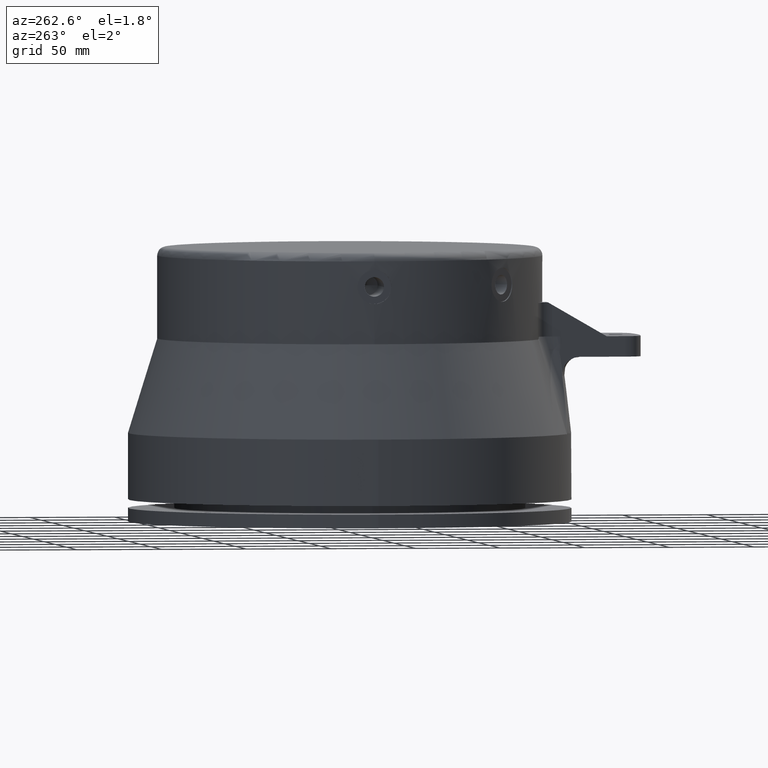
[diagram: clean part render]
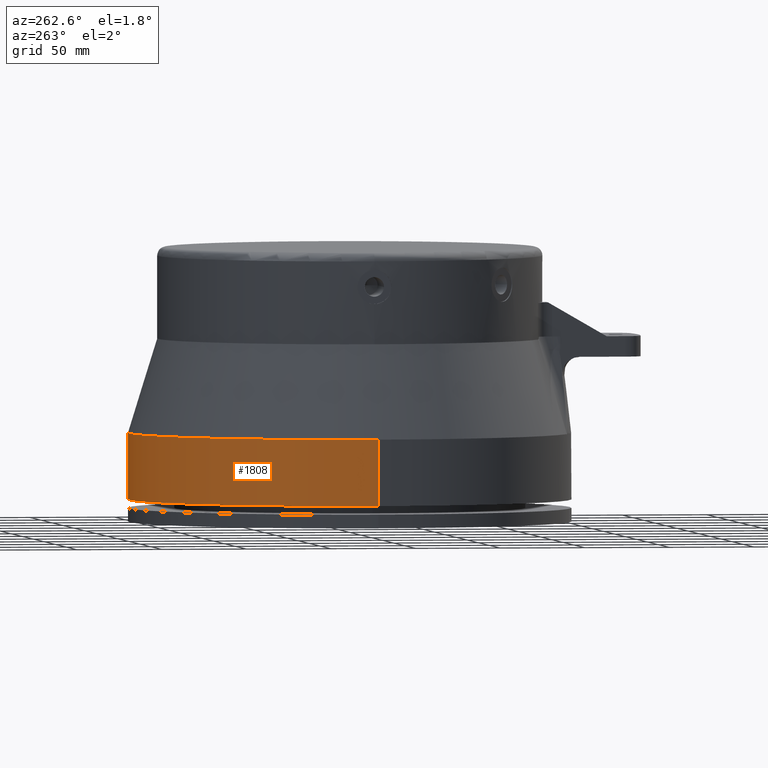
[diagram: same view with one face highlighted and labeled with its STEP entity id]
A machine part, auxiliary view. The second image highlights one B-rep face of the part: STEP entity #1808.
In plain terms, the highlighted cylindrical surface (partial cylindrical patch) has radius 130 mm, axis along (0, 0, 1).
Its self-contained STEP definition (entity closure, byte-faithful):
#370=CARTESIAN_POINT('',(2.718715894107E-14,0.E0,-1.48E2));
#371=DIRECTION('',(0.E0,0.E0,1.E0));
#372=DIRECTION('',(1.E0,0.E0,0.E0));
#373=AXIS2_PLACEMENT_3D('',#370,#371,#372);
#375=DIRECTION('',(0.E0,0.E0,1.E0));
#376=VECTOR('',#375,3.9E1);
#377=CARTESIAN_POINT('',(1.3E2,0.E0,-1.48E2));
#378=LINE('',#377,#376);
#379=DIRECTION('',(0.E0,0.E0,1.E0));
#380=VECTOR('',#379,3.9E1);
#381=CARTESIAN_POINT('',(-1.3E2,0.E0,-1.48E2));
#382=LINE('',#381,#380);
#383=CARTESIAN_POINT('',(1.298112031889E2,7.003679508836E0,-1.22E2));
#384=CARTESIAN_POINT('',(1.298112031889E2,7.003679508836E0,-1.224204795832E2));
#385=CARTESIAN_POINT('',(1.298083788692E2,7.056325144006E0,-1.232540116315E2));
#386=CARTESIAN_POINT('',(1.297954440103E2,7.292063664369E0,-1.244909640563E2));
#387=CARTESIAN_POINT('',(1.297731587913E2,7.681014741076E0,-1.256877653222E2));
#388=CARTESIAN_POINT('',(1.297405111336E2,8.217180880025E0,-1.268275960629E2));
#389=CARTESIAN_POINT('',(1.296962347131E2,8.892109125148E0,-1.278917402317E2));
#390=CARTESIAN_POINT('',(1.296389481546E2,9.694934846737E0,-1.288632003519E2));
#391=CARTESIAN_POINT('',(1.295673175090E2,1.061251295621E1,-1.297262091482E2));
#392=CARTESIAN_POINT('',(1.294802219807E2,1.162971903419E1,-1.304668858103E2));
#393=CARTESIAN_POINT('',(1.293769124866E2,1.272982018503E1,-1.310734724753E2));
#394=CARTESIAN_POINT('',(1.292571445178E2,1.389493029358E1,-1.315365583349E2));
#395=CARTESIAN_POINT('',(1.291212870763E2,1.510638740907E1,-1.318491269103E2));
#396=CARTESIAN_POINT('',(1.289703971799E2,1.634510311370E1,-1.320065536821E2));
#397=CARTESIAN_POINT('',(1.288062611644E2,1.759183979132E1,-1.320065534536E2));
#398=CARTESIAN_POINT('',(1.286314073509E2,1.882739357549E1,-1.318491272796E2));
#399=CARTESIAN_POINT('',(1.284490898931E2,2.003271803157E1,-1.315365644631E2));
#400=CARTESIAN_POINT('',(1.282632254830E2,2.118911972103E1,-1.310734852614E2));
#401=CARTESIAN_POINT('',(1.280782875173E2,2.227847657922E1,-1.304669019418E2));
#402=CARTESIAN_POINT('',(1.278991424331E2,2.328356856378E1,-1.297262264549E2));
#403=CARTESIAN_POINT('',(1.277308451456E2,2.418842369940E1,-1.288632190432E2));
#404=CARTESIAN_POINT('',(1.275783923008E2,2.497872542015E1,-1.278917577865E2));
#405=CARTESIAN_POINT('',(1.274464751027E2,2.564211918029E1,-1.268276125942E2));
#406=CARTESIAN_POINT('',(1.273392396536E2,2.616846911067E1,-1.256877796896E2));
#407=CARTESIAN_POINT('',(1.272600969988E2,2.654993767777E1,-1.244909751038E2));
#408=CARTESIAN_POINT('',(1.272115770591E2,2.678099347458E1,-1.232540175354E2));
#409=CARTESIAN_POINT('',(1.272006793445E2,2.683257673631E1,-1.224204816626E2));
#410=CARTESIAN_POINT('',(1.272006793445E2,2.683257673631E1,-1.22E2));
#412=CARTESIAN_POINT('',(1.272006793445E2,2.683257673631E1,-1.22E2));
#413=CARTESIAN_POINT('',(1.272006793445E2,2.683257673631E1,-1.215795204168E2));
#414=CARTESIAN_POINT('',(1.272115769542E2,2.678099396995E1,-1.207459883685E2));
#415=CARTESIAN_POINT('',(1.272600964587E2,2.654994025705E1,-1.195090359437E2));
#416=CARTESIAN_POINT('',(1.273392385363E2,2.616847452779E1,-1.183122346778E2));
#417=CARTESIAN_POINT('',(1.274464733287E2,2.564212797140E1,-1.171724039371E2));
#418=CARTESIAN_POINT('',(1.275783898745E2,2.497873776767E1,-1.161082597683E2));
#419=CARTESIAN_POINT('',(1.277308418949E2,2.418844081682E1,-1.151367996481E2));
#420=CARTESIAN_POINT('',(1.278991386944E2,2.328358904795E1,-1.142737908518E2));
#421=CARTESIAN_POINT('',(1.280782831800E2,2.227850144508E1,-1.135331141897E2));
#422=CARTESIAN_POINT('',(1.282632210010E2,2.118914686737E1,-1.129265275247E2));
#423=CARTESIAN_POINT('',(1.284490867125E2,2.003273869173E1,-1.124634416651E2));
#424=CARTESIAN_POINT('',(1.286314066748E2,1.882739848314E1,-1.121508730897E2));
#425=CARTESIAN_POINT('',(1.288062614429E2,1.759183781372E1,-1.119934463179E2));
#426=CARTESIAN_POINT('',(1.289703974228E2,1.634510113141E1,-1.119934465464E2));
#427=CARTESIAN_POINT('',(1.291212864591E2,1.510639232447E1,-1.121508727204E2));
#428=CARTESIAN_POINT('',(1.292571422428E2,1.389495107296E1,-1.124634355369E2));
#429=CARTESIAN_POINT('',(1.293769097899E2,1.272984756640E1,-1.129265147386E2));
#430=CARTESIAN_POINT('',(1.294802197344E2,1.162974417535E1,-1.135330980582E2));
#431=CARTESIAN_POINT('',(1.295673158186E2,1.061253371003E1,-1.142737735451E2));
#432=CARTESIAN_POINT('',(1.296389468643E2,9.694952222251E0,-1.151367809568E2));
#433=CARTESIAN_POINT('',(1.296962338609E2,8.892121679913E0,-1.161082422135E2));
#434=CARTESIAN_POINT('',(1.297405105718E2,8.217189830726E0,-1.171723874058E2));
#435=CARTESIAN_POINT('',(1.297731584684E2,7.681020262768E0,-1.183122203104E2));
#436=CARTESIAN_POINT('',(1.297954438645E2,7.292066295556E0,-1.195090248962E2));
#437=CARTESIAN_POINT('',(1.298083788423E2,7.056325649641E0,-1.207459824646E2));
#438=CARTESIAN_POINT('',(1.298112031889E2,7.003679508836E0,-1.215795183374E2));
#439=CARTESIAN_POINT('',(1.298112031889E2,7.003679508836E0,-1.22E2));
#1222=CARTESIAN_POINT('',(2.002297516606E-14,0.E0,-1.09E2));
#1223=DIRECTION('',(0.E0,0.E0,-1.E0));
#1224=DIRECTION('',(-1.E0,0.E0,0.E0));
#1225=AXIS2_PLACEMENT_3D('',#1222,#1223,#1224);
#1520=CARTESIAN_POINT('',(-1.3E2,0.E0,-1.09E2));
#1521=CARTESIAN_POINT('',(1.3E2,1.592040838892E-14,-1.09E2));
#1522=VERTEX_POINT('',#1520);
#1523=VERTEX_POINT('',#1521);
#1712=CARTESIAN_POINT('',(-1.3E2,0.E0,-1.48E2));
#1713=CARTESIAN_POINT('',(1.3E2,-1.592040838892E-14,-1.48E2));
#1714=VERTEX_POINT('',#1712);
#1715=VERTEX_POINT('',#1713);
#1730=VERTEX_POINT('',#383);
#1731=VERTEX_POINT('',#410);
#1787=CARTESIAN_POINT('',(3.105398120938E-14,0.E0,-1.6905E2));
#1788=DIRECTION('',(0.E0,0.E0,1.E0));
#1789=DIRECTION('',(-1.E0,0.E0,0.E0));
#1790=AXIS2_PLACEMENT_3D('',#1787,#1788,#1789);
#1791=CYLINDRICAL_SURFACE('',#1790,1.3E2);
#1793=ORIENTED_EDGE('',*,*,#1792,.F.);
#1795=ORIENTED_EDGE('',*,*,#1794,.T.);
#1797=ORIENTED_EDGE('',*,*,#1796,.F.);
#1799=ORIENTED_EDGE('',*,*,#1798,.F.);
#1800=EDGE_LOOP('',(#1793,#1795,#1797,#1799));
#1801=FACE_OUTER_BOUND('',#1800,.F.);
#1803=ORIENTED_EDGE('',*,*,#1802,.T.);
#1805=ORIENTED_EDGE('',*,*,#1804,.T.);
#1806=EDGE_LOOP('',(#1803,#1805));
#1807=FACE_BOUND('',#1806,.F.);
#374=CIRCLE('',#373,1.3E2);
#411=B_SPLINE_CURVE_WITH_KNOTS('',3,(#383,#384,#385,#386,#387,#388,#389,#390,
#391,#392,#393,#394,#395,#396,#397,#398,#399,#400,#401,#402,#403,#404,#405,#406,
#407,#408,#409,#410),.UNSPECIFIED.,.F.,.F.,(4,1,1,1,1,1,1,1,1,1,1,1,1,1,1,1,1,1,
1,1,1,1,1,1,1,4),(0.E0,4.E-2,8.E-2,1.2E-1,1.6E-1,2.E-1,2.4E-1,2.8E-1,3.2E-1,
3.6E-1,4.E-1,4.4E-1,4.8E-1,5.2E-1,5.6E-1,6.E-1,6.4E-1,6.8E-1,7.2E-1,7.6E-1,
8.E-1,8.4E-1,8.8E-1,9.2E-1,9.6E-1,1.E0),.UNSPECIFIED.);
#440=B_SPLINE_CURVE_WITH_KNOTS('',3,(#412,#413,#414,#415,#416,#417,#418,#419,
#420,#421,#422,#423,#424,#425,#426,#427,#428,#429,#430,#431,#432,#433,#434,#435,
#436,#437,#438,#439),.UNSPECIFIED.,.F.,.F.,(4,1,1,1,1,1,1,1,1,1,1,1,1,1,1,1,1,1,
1,1,1,1,1,1,1,4),(0.E0,4.E-2,8.E-2,1.2E-1,1.6E-1,2.E-1,2.4E-1,2.8E-1,3.2E-1,
3.6E-1,4.E-1,4.4E-1,4.8E-1,5.2E-1,5.6E-1,6.E-1,6.4E-1,6.8E-1,7.2E-1,7.6E-1,
8.E-1,8.4E-1,8.8E-1,9.2E-1,9.6E-1,1.E0),.UNSPECIFIED.);
#1226=CIRCLE('',#1225,1.3E2);
#1792=EDGE_CURVE('',#1715,#1714,#374,.T.);
#1794=EDGE_CURVE('',#1715,#1523,#378,.T.);
#1796=EDGE_CURVE('',#1522,#1523,#1226,.T.);
#1798=EDGE_CURVE('',#1714,#1522,#382,.T.);
#1802=EDGE_CURVE('',#1730,#1731,#411,.T.);
#1804=EDGE_CURVE('',#1731,#1730,#440,.T.);
#1808=ADVANCED_FACE('',(#1801,#1807),#1791,.T.);